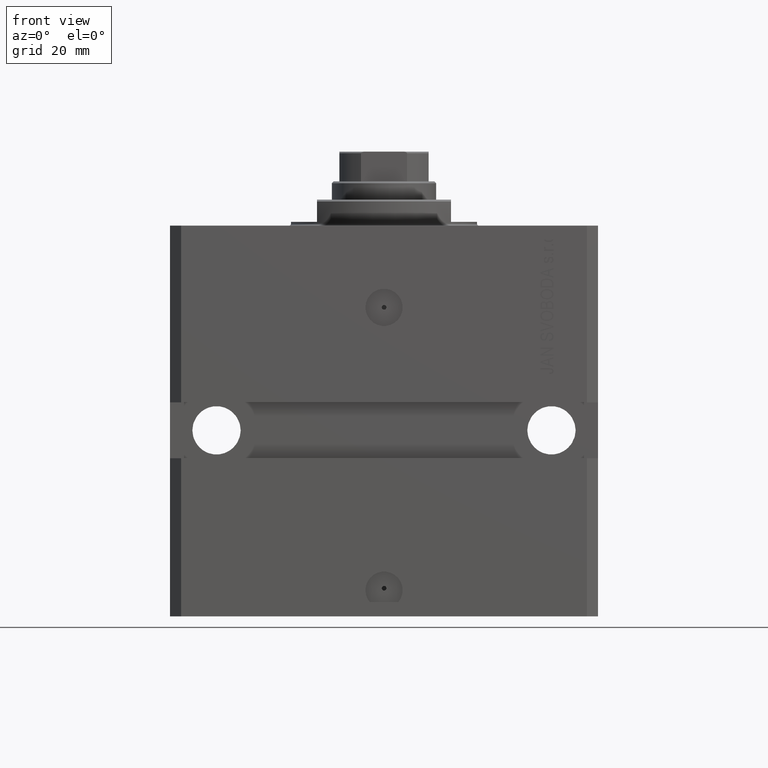
[diagram: clean part render]
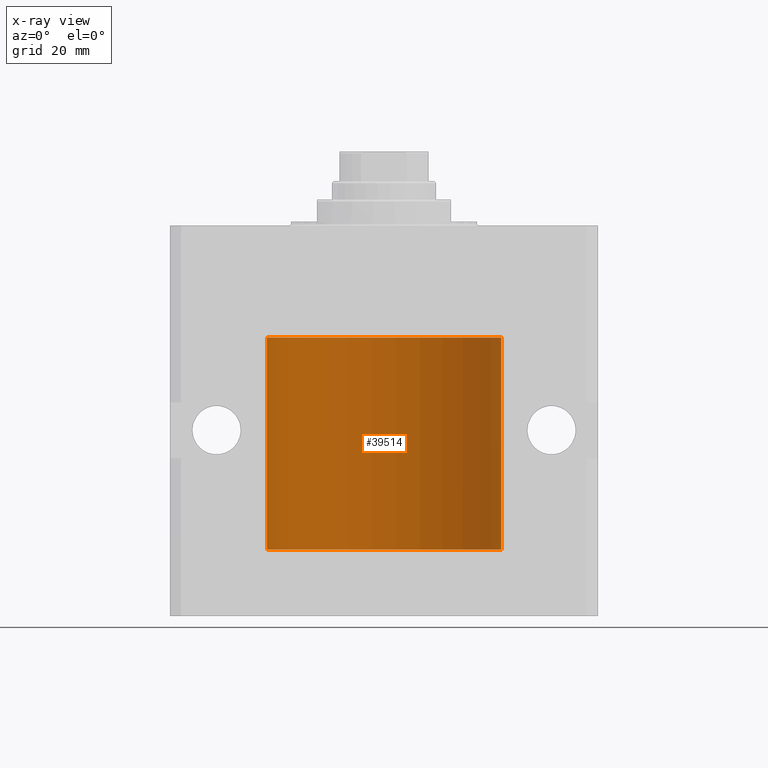
[diagram: x-ray — body ghosted, one internal face saturated and labeled with its STEP entity id]
A machine part, front view, then the same camera in x-ray: the body is ghosted and one INTERNAL B-rep face — a face not visible from any outside direction — is saturated and labeled: STEP entity #39514.
In plain terms, the highlighted cylindrical surface (partial cylindrical patch) has radius 31.5 mm, axis along (0, 0, 1).
Its self-contained STEP definition (entity closure, byte-faithful):
#1130 = EDGE_CURVE ( 'NONE', #23538, #48271, #3157, .T. ) ;
#1254 = CARTESIAN_POINT ( 'NONE',  ( -31.49999999999998579, 0.1631661150515253123, -84.62499999999982947 ) ) ;
#1511 = CARTESIAN_POINT ( 'NONE',  ( -31.50000000000006395, 3.480981129463732167E-13, -84.62500000000324007 ) ) ;
#1710 = ORIENTED_EDGE ( 'NONE', *, *, #1130, .T. ) ;
#1920 = VERTEX_POINT ( 'NONE', #41344 ) ;
#2232 = VERTEX_POINT ( 'NONE', #40492 ) ;
#2918 = ORIENTED_EDGE ( 'NONE', *, *, #12405, .F. ) ;
#3106 = DIRECTION ( 'NONE',  ( -0.000000000000000000, -0.000000000000000000, 1.000000000000000000 ) ) ;
#3133 = DIRECTION ( 'NONE',  ( 0.000000000000000000, 0.000000000000000000, 1.000000000000000000 ) ) ;
#3157 = B_SPLINE_CURVE_WITH_KNOTS ( 'NONE', 3,
 ( #20887, #13169, #28370, #8463, #47020, #43299, #20401, #5241, #23860, #47266, #1254, #1511 ),
 .UNSPECIFIED., .F., .F.,
 ( 4, 2, 2, 2, 2, 4 ),
 ( 3.075703443732137786E-18, 0.0002442604562134845204, 0.0004885209124269658965, 0.0009770418248538992670, 0.001465562737280832637, 0.001954083649707766008 ),
 .UNSPECIFIED. ) ;
#3419 = FACE_OUTER_BOUND ( 'NONE', #16215, .T. ) ;
#4600 = CARTESIAN_POINT ( 'NONE',  ( 31.49379899281745665, 0.6250000000082825968, -83.99999999999904787 ) ) ;
#5131 = VERTEX_POINT ( 'NONE', #32375 ) ;
#5135 = AXIS2_PLACEMENT_3D ( 'NONE', #29791, #44956, #10889 ) ;
#5241 = CARTESIAN_POINT ( 'NONE',  ( -31.49379784581975272, 0.6250577973157672718, -84.16284184848845484 ) ) ;
#5640 = EDGE_CURVE ( 'NONE', #40317, #8711, #22746, .T. ) ;
#5759 = AXIS2_PLACEMENT_3D ( 'NONE', #6852, #3133, #44905 ) ;
#6116 = VECTOR ( 'NONE', #3106, 1000.000000000000000 ) ;
#6252 = B_SPLINE_CURVE_WITH_KNOTS ( 'NONE', 3,
 ( #17431, #36358, #32621, #47792, #42162, #8067, #15769, #4600 ),
 .UNSPECIFIED., .F., .F.,
 ( 4, 2, 2, 4 ),
 ( 2.422664849601941982E-18, 0.0002443157997801665674, 0.0004886315995603306411, 0.0009772631991206588969 ),
 .UNSPECIFIED. ) ;
#6852 = CARTESIAN_POINT ( 'NONE',  ( 0.000000000000000000, 0.000000000000000000, -30.10000000000000142 ) ) ;
#8067 = CARTESIAN_POINT ( 'NONE',  ( 31.49527883250257432, 0.5574151849338155884, -84.32638608454756479 ) ) ;
#8463 = CARTESIAN_POINT ( 'NONE',  ( -31.49851563474691218, 0.3150284575672411824, -83.45401791159622462 ) ) ;
#8711 = VERTEX_POINT ( 'NONE', #15765 ) ;
#9049 = CARTESIAN_POINT ( 'NONE',  ( 31.49379899281745665, 0.6250000000082825968, -83.99999999999904787 ) ) ;
#9108 = VECTOR ( 'NONE', #14352, 1000.000000000000000 ) ;
#9561 = ORIENTED_EDGE ( 'NONE', *, *, #44948, .T. ) ;
#10561 = CARTESIAN_POINT ( 'NONE',  ( -31.50000000000000000, 3.857637417314161900E-15, -87.10000000000000853 ) ) ;
#10889 = DIRECTION ( 'NONE',  ( 1.000000000000000000, 0.000000000000000000, 0.000000000000000000 ) ) ;
#11283 = CARTESIAN_POINT ( 'NONE',  ( 31.50000000000000000, 0.000000000000000000, -87.10000000000000853 ) ) ;
#11528 = LINE ( 'NONE', #11283, #6116 ) ;
#12405 = EDGE_CURVE ( 'NONE', #8711, #48271, #27240, .T. ) ;
#13169 = CARTESIAN_POINT ( 'NONE',  ( -31.49999999999998579, 0.08259258789479478891, -83.37499999999998579 ) ) ;
#14087 = B_SPLINE_CURVE_WITH_KNOTS ( 'NONE', 3,
 ( #9049, #21223, #42880, #23950, #32438, #24461 ),
 .UNSPECIFIED., .F., .F.,
 ( 4, 2, 4 ),
 ( 0.0009772631991206588969, 0.001465673424414194563, 0.001954083649707730446 ),
 .UNSPECIFIED. ) ;
#14352 = DIRECTION ( 'NONE',  ( -0.000000000000000000, -0.000000000000000000, 1.000000000000000000 ) ) ;
#14881 = VECTOR ( 'NONE', #46651, 1000.000000000000000 ) ;
#15078 = CYLINDRICAL_SURFACE ( 'NONE', #5135, 31.50000000000000000 ) ;
#15765 = CARTESIAN_POINT ( 'NONE',  ( -31.50000000000000000, 3.857637417314161900E-15, -87.10000000000000853 ) ) ;
#15769 = CARTESIAN_POINT ( 'NONE',  ( 31.49379899281760942, 0.6250000000003405054, -84.16310352862699062 ) ) ;
#16178 = ORIENTED_EDGE ( 'NONE', *, *, #18492, .T. ) ;
#16215 = EDGE_LOOP ( 'NONE', ( #2918, #48925, #9561, #16178, #17684, #31984, #21849, #45220, #1710 ) ) ;
#16909 = CARTESIAN_POINT ( 'NONE',  ( 31.50000000000000000, -2.492939093807799249E-15, -84.62499999999998579 ) ) ;
#17241 = EDGE_CURVE ( 'NONE', #2232, #30506, #14087, .T. ) ;
#17431 = CARTESIAN_POINT ( 'NONE',  ( 31.50000000000000000, -2.492939093807799249E-15, -84.62499999999998579 ) ) ;
#17684 = ORIENTED_EDGE ( 'NONE', *, *, #17241, .T. ) ;
#17722 = CARTESIAN_POINT ( 'NONE',  ( 31.50000000000006395, 3.442404755096224483E-13, -83.37499999999675993 ) ) ;
#18437 = EDGE_CURVE ( 'NONE', #1920, #5131, #47059, .T. ) ;
#18492 = EDGE_CURVE ( 'NONE', #46364, #2232, #6252, .T. ) ;
#20401 = CARTESIAN_POINT ( 'NONE',  ( -31.49380014137585704, 0.6249421240571523262, -83.83671479190289233 ) ) ;
#20887 = CARTESIAN_POINT ( 'NONE',  ( -31.50000000000000000, 7.975607743522037396E-16, -83.37500000000000000 ) ) ;
#21223 = CARTESIAN_POINT ( 'NONE',  ( 31.49379899281762363, 0.6249999999996236344, -83.83697036533064306 ) ) ;
#21849 = ORIENTED_EDGE ( 'NONE', *, *, #18437, .T. ) ;
#22746 = CIRCLE ( 'NONE', #40238, 31.50000000000000000 ) ;
#23538 = VERTEX_POINT ( 'NONE', #26375 ) ;
#23860 = CARTESIAN_POINT ( 'NONE',  ( -31.49526081842315151, 0.5587119163470756211, -84.32511513093052713 ) ) ;
#23950 = CARTESIAN_POINT ( 'NONE',  ( 31.49853627283156499, 0.3253078817183396310, -83.44140989403643971 ) ) ;
#23987 = CARTESIAN_POINT ( 'NONE',  ( -31.50000000000000000, 3.857637417314161900E-15, -87.10000000000000853 ) ) ;
#24461 = CARTESIAN_POINT ( 'NONE',  ( 31.50000000000006395, 3.442404755096224483E-13, -83.37499999999675993 ) ) ;
#24619 = VECTOR ( 'NONE', #33940, 1000.000000000000000 ) ;
#24818 = LINE ( 'NONE', #29057, #9108 ) ;
#25511 = EDGE_CURVE ( 'NONE', #23538, #5131, #25717, .T. ) ;
#25717 = LINE ( 'NONE', #10561, #24619 ) ;
#26375 = CARTESIAN_POINT ( 'NONE',  ( -31.50000000000000000, 7.975607743522037396E-16, -83.37500000000000000 ) ) ;
#27240 = LINE ( 'NONE', #23987, #14881 ) ;
#28370 = CARTESIAN_POINT ( 'NONE',  ( -31.49966591610109390, 0.1636376958180636443, -83.39126189995840832 ) ) ;
#29057 = CARTESIAN_POINT ( 'NONE',  ( 31.50000000000000000, 0.000000000000000000, -87.10000000000000853 ) ) ;
#29791 = CARTESIAN_POINT ( 'NONE',  ( 0.000000000000000000, 0.000000000000000000, -87.10000000000000853 ) ) ;
#30506 = VERTEX_POINT ( 'NONE', #17722 ) ;
#31466 = CARTESIAN_POINT ( 'NONE',  ( 0.000000000000000000, 0.000000000000000000, -87.10000000000000853 ) ) ;
#31984 = ORIENTED_EDGE ( 'NONE', *, *, #39336, .T. ) ;
#32375 = CARTESIAN_POINT ( 'NONE',  ( -31.50000000000000000, 3.857637417314161900E-15, -30.10000000000000142 ) ) ;
#32438 = CARTESIAN_POINT ( 'NONE',  ( 31.50000000000000000, 0.1631291455194407158, -83.37500000000014211 ) ) ;
#32621 = CARTESIAN_POINT ( 'NONE',  ( 31.49966575203785268, 0.1636755595825563903, -84.60873030821188934 ) ) ;
#33940 = DIRECTION ( 'NONE',  ( -0.000000000000000000, -0.000000000000000000, 1.000000000000000000 ) ) ;
#36358 = CARTESIAN_POINT ( 'NONE',  ( 31.50000000000000000, 0.08261130139621999935, -84.62499999999995737 ) ) ;
#37561 = CARTESIAN_POINT ( 'NONE',  ( -31.50000000000006395, 3.480981129463732167E-13, -84.62500000000324007 ) ) ;
#39336 = EDGE_CURVE ( 'NONE', #30506, #1920, #24818, .T. ) ;
#39514 = ADVANCED_FACE ( 'NONE', ( #3419 ), #15078, .F. ) ;
#40238 = AXIS2_PLACEMENT_3D ( 'NONE', #31466, #46376, #45888 ) ;
#40317 = VERTEX_POINT ( 'NONE', #49197 ) ;
#40492 = CARTESIAN_POINT ( 'NONE',  ( 31.49379899281745665, 0.6250000000082825968, -83.99999999999904787 ) ) ;
#41344 = CARTESIAN_POINT ( 'NONE',  ( 31.50000000000000000, 0.000000000000000000, -30.10000000000000142 ) ) ;
#42162 = CARTESIAN_POINT ( 'NONE',  ( 31.49770674525946390, 0.3844410175904657834, -84.49948347834464357 ) ) ;
#42880 = CARTESIAN_POINT ( 'NONE',  ( 31.49526225382467359, 0.5586305680866429091, -83.67476160622149450 ) ) ;
#43299 = CARTESIAN_POINT ( 'NONE',  ( -31.49528028230855270, 0.5573323339569611345, -83.67349008819321909 ) ) ;
#44905 = DIRECTION ( 'NONE',  ( 1.000000000000000000, 0.000000000000000000, 0.000000000000000000 ) ) ;
#44948 = EDGE_CURVE ( 'NONE', #40317, #46364, #11528, .T. ) ;
#44956 = DIRECTION ( 'NONE',  ( -0.000000000000000000, -0.000000000000000000, 1.000000000000000000 ) ) ;
#45220 = ORIENTED_EDGE ( 'NONE', *, *, #25511, .F. ) ;
#45888 = DIRECTION ( 'NONE',  ( 1.000000000000000000, 0.000000000000000000, 0.000000000000000000 ) ) ;
#46364 = VERTEX_POINT ( 'NONE', #16909 ) ;
#46376 = DIRECTION ( 'NONE',  ( 0.000000000000000000, 0.000000000000000000, 1.000000000000000000 ) ) ;
#46651 = DIRECTION ( 'NONE',  ( -0.000000000000000000, -0.000000000000000000, 1.000000000000000000 ) ) ;
#47020 = CARTESIAN_POINT ( 'NONE',  ( -31.49770767031179730, 0.3843648832734379295, -83.50046081259654329 ) ) ;
#47059 = CIRCLE ( 'NONE', #5759, 31.50000000000000000 ) ;
#47266 = CARTESIAN_POINT ( 'NONE',  ( -31.49853548231893541, 0.3253851488062164399, -84.55855470525685291 ) ) ;
#47792 = CARTESIAN_POINT ( 'NONE',  ( 31.49851501686590893, 0.3150934959385818801, -84.54594721883857744 ) ) ;
#48271 = VERTEX_POINT ( 'NONE', #37561 ) ;
#48925 = ORIENTED_EDGE ( 'NONE', *, *, #5640, .F. ) ;
#49197 = CARTESIAN_POINT ( 'NONE',  ( 31.50000000000000000, 0.000000000000000000, -87.10000000000000853 ) ) ;